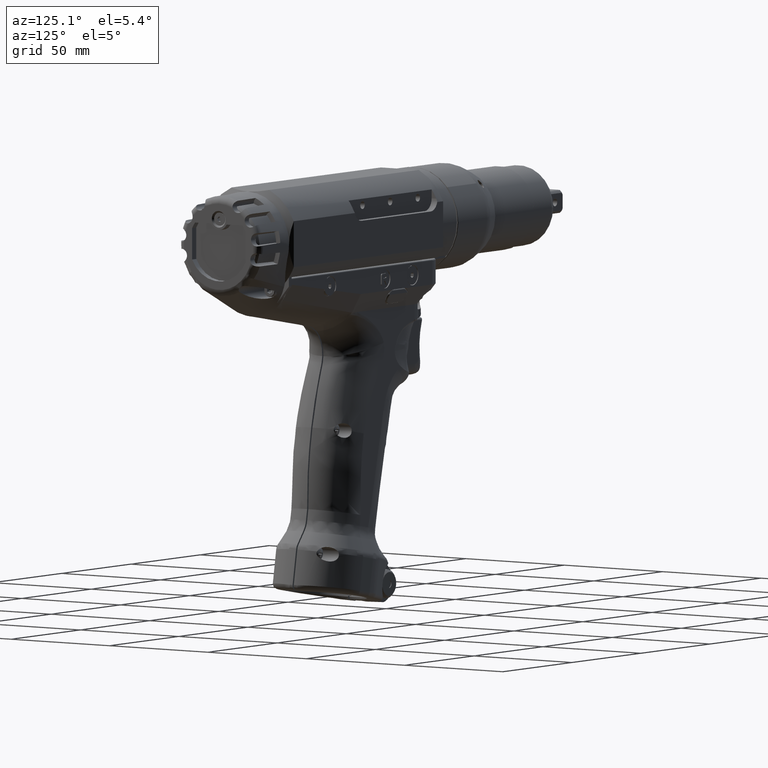
[diagram: clean part render]
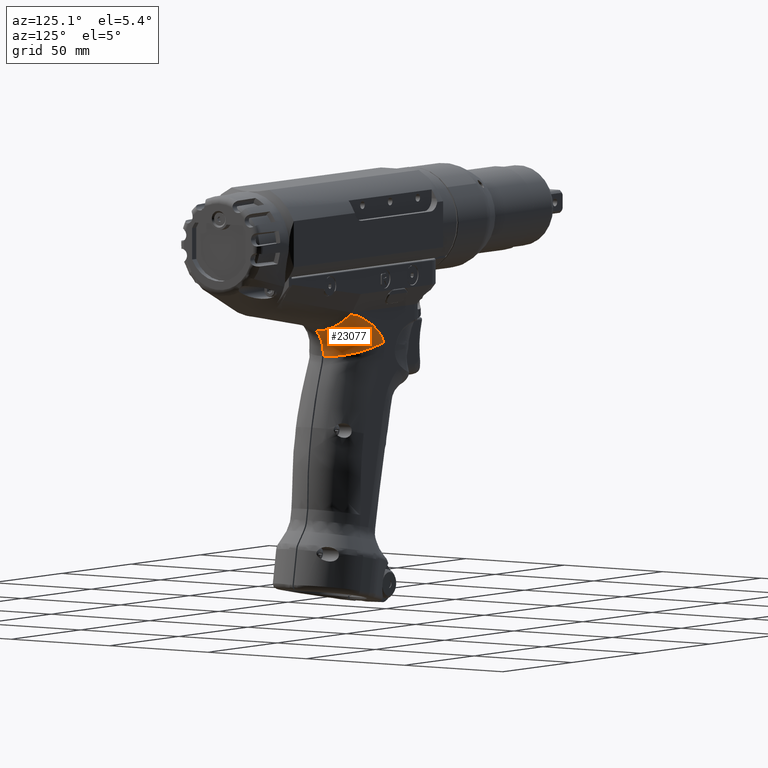
[diagram: same view with one face highlighted and labeled with its STEP entity id]
A machine part, auxiliary view. The second image highlights one B-rep face of the part: STEP entity #23077.
In plain terms, the highlighted face is a freeform B-spline surface patch.
Its self-contained STEP definition (entity closure, byte-faithful):
#4846=FACE_OUTER_BOUND('',#6165,.T.);
#6165=EDGE_LOOP('',(#18404,#18405,#18406,#18407));
#8032=B_SPLINE_CURVE_WITH_KNOTS('',3,(#47903,#47904,#47905,#47906,#47907,
#47908,#47909,#47910,#47911,#47912),.UNSPECIFIED.,.F.,.F.,(4,2,2,2,4),(-0.706436692791301,
-0.540412069470873,-0.374208225789473,-0.209948044190171,0.),
 .UNSPECIFIED.);
#8103=B_SPLINE_CURVE_WITH_KNOTS('',3,(#52436,#52437,#52438,#52439,#52440,
#52441,#52442,#52443,#52444,#52445,#52446,#52447,#52448,#52449,#52450,#52451,
#52452,#52453,#52454,#52455,#52456,#52457,#52458,#52459,#52460,#52461),
 .UNSPECIFIED.,.F.,.F.,(4,2,2,2,2,2,2,2,2,2,2,2,4),(1.34517341830377,3.0744719434439,
4.61170791516585,6.1489438868878,9.2234158303317,12.2978877737756,15.3723597172195,
16.9095956889415,18.4468316606634,19.9840676323854,21.5213036041073,23.0585395758293,
24.1925660659876),.UNSPECIFIED.);
#8115=B_SPLINE_CURVE_WITH_KNOTS('',3,(#53093,#53094,#53095,#53096,#53097,
#53098,#53099,#53100,#53101,#53102,#53103,#53104,#53105,#53106,#53107,#53108,
#53109,#53110,#53111,#53112,#53113,#53114),.UNSPECIFIED.,.F.,.F.,(4,3,3,
3,3,3,3,4),(0.0136464221409409,1.00000000026113,2.00000000041734,3.00000000057355,
4.00000000072976,5.00000000088597,6.00000000104218,6.9317977989823),
 .UNSPECIFIED.);
#8116=B_SPLINE_CURVE_WITH_KNOTS('',3,(#53375,#53376,#53377,#53378,#53379,
#53380,#53381,#53382,#53383,#53384,#53385,#53386,#53387,#53388,#53389,#53390,
#53391,#53392,#53393,#53394,#53395,#53396,#53397,#53398,#53399,#53400,#53401,
#53402,#53403,#53404,#53405,#53406,#53407,#53408,#53409,#53410,#53411,#53412,
#53413,#53414,#53415,#53416,#53417,#53418,#53419,#53420,#53421,#53422,#53423,
#53424,#53425,#53426,#53427,#53428,#53429,#53430,#53431,#53432,#53433,#53434,
#53435,#53436,#53437,#53438,#53439,#53440,#53441,#53442,#53443,#53444,#53445,
#53446,#53447,#53448,#53449,#53450,#53451,#53452,#53453,#53454,#53455,#53456,
#53457,#53458,#53459,#53460,#53461,#53462,#53463,#53464,#53465),
 .UNSPECIFIED.,.F.,.F.,(4,3,3,3,3,3,3,3,3,3,3,3,3,3,3,3,3,3,3,3,3,3,3,3,
3,3,3,3,3,3,4),(0.00445075458365548,0.72268126849615,1.46687370271726,2.22049502442213,
2.9878117044714,3.56746661180128,4.02126984733933,5.18763668429017,6.3805263647102,
7.12668029691477,8.05712127540025,9.60543250227456,10.6895826799625,12.1090980424027,
14.2494222677796,15.6158382951359,16.1759461798393,17.4744580553235,17.8098090379478,
18.7946534302228,19.8071783148312,20.2475859429209,21.1501327652931,21.3706433405057,
22.3939905892686,23.5253558104064,24.3621617742334,24.9355356215985,26.1643871501913,
27.5667143683033,28.4996910110152),.UNSPECIFIED.);
#10001=VERTEX_POINT('',#47891);
#10002=VERTEX_POINT('',#47902);
#10098=VERTEX_POINT('',#52435);
#10106=VERTEX_POINT('',#53076);
#12910=EDGE_CURVE('',#10001,#10002,#8032,.T.);
#13066=EDGE_CURVE('',#10098,#10002,#8103,.T.);
#13080=EDGE_CURVE('',#10106,#10001,#8115,.T.);
#13081=EDGE_CURVE('',#10106,#10098,#8116,.T.);
#18404=ORIENTED_EDGE('',*,*,#13081,.T.);
#18405=ORIENTED_EDGE('',*,*,#13066,.T.);
#18406=ORIENTED_EDGE('',*,*,#12910,.F.);
#18407=ORIENTED_EDGE('',*,*,#13080,.F.);
#20941=B_SPLINE_SURFACE_WITH_KNOTS('',3,3,((#53115,#53116,#53117,#53118,
#53119,#53120,#53121,#53122,#53123,#53124,#53125,#53126,#53127,#53128,#53129,
#53130,#53131,#53132,#53133,#53134,#53135,#53136,#53137,#53138,#53139,#53140),
(#53141,#53142,#53143,#53144,#53145,#53146,#53147,#53148,#53149,#53150,
#53151,#53152,#53153,#53154,#53155,#53156,#53157,#53158,#53159,#53160,#53161,
#53162,#53163,#53164,#53165,#53166),(#53167,#53168,#53169,#53170,#53171,
#53172,#53173,#53174,#53175,#53176,#53177,#53178,#53179,#53180,#53181,#53182,
#53183,#53184,#53185,#53186,#53187,#53188,#53189,#53190,#53191,#53192),
(#53193,#53194,#53195,#53196,#53197,#53198,#53199,#53200,#53201,#53202,
#53203,#53204,#53205,#53206,#53207,#53208,#53209,#53210,#53211,#53212,#53213,
#53214,#53215,#53216,#53217,#53218),(#53219,#53220,#53221,#53222,#53223,
#53224,#53225,#53226,#53227,#53228,#53229,#53230,#53231,#53232,#53233,#53234,
#53235,#53236,#53237,#53238,#53239,#53240,#53241,#53242,#53243,#53244),
(#53245,#53246,#53247,#53248,#53249,#53250,#53251,#53252,#53253,#53254,
#53255,#53256,#53257,#53258,#53259,#53260,#53261,#53262,#53263,#53264,#53265,
#53266,#53267,#53268,#53269,#53270),(#53271,#53272,#53273,#53274,#53275,
#53276,#53277,#53278,#53279,#53280,#53281,#53282,#53283,#53284,#53285,#53286,
#53287,#53288,#53289,#53290,#53291,#53292,#53293,#53294,#53295,#53296),
(#53297,#53298,#53299,#53300,#53301,#53302,#53303,#53304,#53305,#53306,
#53307,#53308,#53309,#53310,#53311,#53312,#53313,#53314,#53315,#53316,#53317,
#53318,#53319,#53320,#53321,#53322),(#53323,#53324,#53325,#53326,#53327,
#53328,#53329,#53330,#53331,#53332,#53333,#53334,#53335,#53336,#53337,#53338,
#53339,#53340,#53341,#53342,#53343,#53344,#53345,#53346,#53347,#53348),
(#53349,#53350,#53351,#53352,#53353,#53354,#53355,#53356,#53357,#53358,
#53359,#53360,#53361,#53362,#53363,#53364,#53365,#53366,#53367,#53368,#53369,
#53370,#53371,#53372,#53373,#53374)),.UNSPECIFIED.,.F.,.F.,.F.,(4,1,1,1,
1,1,1,4),(4,2,2,2,2,2,2,2,2,2,2,2,4),(-3.07557470419858E-5,1.,2.,3.,4.,
5.,6.,7.),(0.0480205993587217,3.0744719434439,4.61170791516585,6.1489438868878,
9.2234158303317,12.2978877737756,15.3723597172195,16.9095956889415,18.4468316606634,
19.9840676323854,21.5213036041073,23.0585395758293,24.3562148214928),
 .UNSPECIFIED.);
#23077=ADVANCED_FACE('',(#4846),#20941,.T.);
#47891=CARTESIAN_POINT('',(145.689352641795,0.300000091038293,-51.9993872166801));
#47902=CARTESIAN_POINT('',(150.70561121425,0.299999986791241,-41.1517619440249));
#47903=CARTESIAN_POINT('Ctrl Pts',(145.689347845303,0.299999999998235,-51.9993862263141));
#47904=CARTESIAN_POINT('Ctrl Pts',(145.643853929155,0.299999999998235,-50.9689868878503));
#47905=CARTESIAN_POINT('Ctrl Pts',(145.719497296639,0.299999999942371,-49.9338881016772));
#47906=CARTESIAN_POINT('Ctrl Pts',(146.118548321692,0.29999999994237,-47.897440782609));
#47907=CARTESIAN_POINT('Ctrl Pts',(146.437162251687,0.299999999998232,-46.912230506933));
#47908=CARTESIAN_POINT('Ctrl Pts',(147.308566305078,0.299999999998231,-45.0274632368902));
#47909=CARTESIAN_POINT('Ctrl Pts',(147.850179061906,0.300000000065115,-44.1451974306687));
#47910=CARTESIAN_POINT('Ctrl Pts',(149.332058256935,0.300000000065114,-42.2850201628169));
#47911=CARTESIAN_POINT('Ctrl Pts',(150.152294055988,0.29999999999823,-41.5802453348461));
#47912=CARTESIAN_POINT('Ctrl Pts',(150.705611981354,0.29999999999823,-41.1517633130345));
#52435=CARTESIAN_POINT('',(146.32613658195,14.4149653299118,-33.7505730793564));
#52436=CARTESIAN_POINT('Ctrl Pts',(146.32613658195,14.4149653299118,-33.7505730793563));
#52437=CARTESIAN_POINT('Ctrl Pts',(146.465903341443,14.164320600603,-34.072264441895));
#52438=CARTESIAN_POINT('Ctrl Pts',(146.605475410375,13.911859432446,-34.3925914315026));
#52439=CARTESIAN_POINT('Ctrl Pts',(146.86722963308,13.4178072371134,-34.9846247474012));
#52440=CARTESIAN_POINT('Ctrl Pts',(146.989463270776,13.1770957475516,-35.2568607714395));
#52441=CARTESIAN_POINT('Ctrl Pts',(147.231275672819,12.6779221344053,-35.7856974954742));
#52442=CARTESIAN_POINT('Ctrl Pts',(147.350921941257,12.4196720901509,-36.0425945184102));
#52443=CARTESIAN_POINT('Ctrl Pts',(147.70524589125,11.6200271729274,-36.7886292203272));
#52444=CARTESIAN_POINT('Ctrl Pts',(147.935388234039,11.0538387224606,-37.2533967585892));
#52445=CARTESIAN_POINT('Ctrl Pts',(148.380448928929,9.86496666768318,-38.1124369897286));
#52446=CARTESIAN_POINT('Ctrl Pts',(148.595235440844,9.24171284672317,-38.5060653725463));
#52447=CARTESIAN_POINT('Ctrl Pts',(149.006189429593,7.94678854537633,-39.2158536842459));
#52448=CARTESIAN_POINT('Ctrl Pts',(149.202445758899,7.27536658492244,-39.5323954021117));
#52449=CARTESIAN_POINT('Ctrl Pts',(149.480708995055,6.23927982510829,-39.9456065668083));
#52450=CARTESIAN_POINT('Ctrl Pts',(149.570751035203,5.88911262033351,-40.0730392206096));
#52451=CARTESIAN_POINT('Ctrl Pts',(149.745200312149,5.18046999786993,-40.3069980398824));
#52452=CARTESIAN_POINT('Ctrl Pts',(149.82938927432,4.82185207983272,-40.4132377180224));
#52453=CARTESIAN_POINT('Ctrl Pts',(149.992779559349,4.09825172771963,-40.605786429009));
#52454=CARTESIAN_POINT('Ctrl Pts',(150.072168018654,3.73335618623017,-40.6923476337625));
#52455=CARTESIAN_POINT('Ctrl Pts',(150.228011262213,2.99941844855846,-40.8483841822349));
#52456=CARTESIAN_POINT('Ctrl Pts',(150.304951306884,2.63041298851804,-40.9184869642242));
#52457=CARTESIAN_POINT('Ctrl Pts',(150.45635652275,1.88954007002732,-41.0422821012445));
#52458=CARTESIAN_POINT('Ctrl Pts',(150.529061645167,1.51633763270146,-41.0936121774255));
#52459=CARTESIAN_POINT('Ctrl Pts',(150.636395132033,0.86129423839058,-41.1463636526654));
#52460=CARTESIAN_POINT('Ctrl Pts',(150.67585966368,0.58103397961778,-41.1571024399937));
#52461=CARTESIAN_POINT('Ctrl Pts',(150.705611402849,0.299999999100247,-41.1517623469896));
#53076=CARTESIAN_POINT('',(123.285600841416,15.1538953846156,-47.373579548946));
#53093=CARTESIAN_POINT('Ctrl Pts',(123.285600872711,15.1538962533228,-47.3735795545362));
#53094=CARTESIAN_POINT('Ctrl Pts',(124.704372362055,15.1000632294402,-47.6665199558509));
#53095=CARTESIAN_POINT('Ctrl Pts',(126.130739462708,15.0382327887221,-47.9610286643993));
#53096=CARTESIAN_POINT('Ctrl Pts',(127.537679252376,14.9135469530622,-48.25152613553));
#53097=CARTESIAN_POINT('Ctrl Pts',(128.964084368247,14.7871360610198,-48.5460427040506));
#53098=CARTESIAN_POINT('Ctrl Pts',(130.370520892114,14.5961185058172,-48.8364362746179));
#53099=CARTESIAN_POINT('Ctrl Pts',(131.775289548369,14.301415771206,-49.1264854660263));
#53100=CARTESIAN_POINT('Ctrl Pts',(133.180058204624,14.0067130365948,-49.4165346574346));
#53101=CARTESIAN_POINT('Ctrl Pts',(134.583158993267,13.6083251225749,-49.7062394696839));
#53102=CARTESIAN_POINT('Ctrl Pts',(135.926353843547,13.0850775513861,-49.9835752015331));
#53103=CARTESIAN_POINT('Ctrl Pts',(137.269548693827,12.5618299801973,-50.2609109333822));
#53104=CARTESIAN_POINT('Ctrl Pts',(138.552837605744,11.9137227518396,-50.5258775848312));
#53105=CARTESIAN_POINT('Ctrl Pts',(139.743518026112,11.1014913284752,-50.7717228995084));
#53106=CARTESIAN_POINT('Ctrl Pts',(140.93419844648,10.2892599051108,-51.0175682141856));
#53107=CARTESIAN_POINT('Ctrl Pts',(142.0322703753,9.3129042867398,-51.2442921920909));
#53108=CARTESIAN_POINT('Ctrl Pts',(142.937685900607,8.17401012462695,-51.4312374938282));
#53109=CARTESIAN_POINT('Ctrl Pts',(143.843101425914,7.03511596251411,-51.6181827955656));
#53110=CARTESIAN_POINT('Ctrl Pts',(144.555860547707,5.73368325665945,-51.7653494211349));
#53111=CARTESIAN_POINT('Ctrl Pts',(145.018165487634,4.34118997188031,-51.8608037594813));
#53112=CARTESIAN_POINT('Ctrl Pts',(145.448940212567,3.0436677956794,-51.9497479017425));
#53113=CARTESIAN_POINT('Ctrl Pts',(145.662258811402,1.6670825326271,-51.9937929987276));
#53114=CARTESIAN_POINT('Ctrl Pts',(145.689352641795,0.300000091038293,-51.9993872166801));
#53115=CARTESIAN_POINT('Ctrl Pts',(123.285528104438,15.153897416313,-47.3736877165499));
#53116=CARTESIAN_POINT('Ctrl Pts',(124.521745768321,15.1069616749321,-47.6289308758978));
#53117=CARTESIAN_POINT('Ctrl Pts',(125.758042465758,15.0543246478494,-47.8841898905707));
#53118=CARTESIAN_POINT('Ctrl Pts',(127.61828967302,14.910343210905,-48.2682763200507));
#53119=CARTESIAN_POINT('Ctrl Pts',(128.243975898026,14.8503073219236,-48.397462145104));
#53120=CARTESIAN_POINT('Ctrl Pts',(129.492112154611,14.6999319967226,-48.6551656751208));
#53121=CARTESIAN_POINT('Ctrl Pts',(130.114430806695,14.6096745295328,-48.7836562545479));
#53122=CARTESIAN_POINT('Ctrl Pts',(131.972358903082,14.2848588612058,-49.1672641712523));
#53123=CARTESIAN_POINT('Ctrl Pts',(133.199776559671,13.9965860462951,-49.4206903331045));
#53124=CARTESIAN_POINT('Ctrl Pts',(135.602068276347,13.2425542392764,-49.9166946193625));
#53125=CARTESIAN_POINT('Ctrl Pts',(136.778156037279,12.7768758130149,-50.1595233407657));
#53126=CARTESIAN_POINT('Ctrl Pts',(139.021148117669,11.6187236670699,-50.6226380912642));
#53127=CARTESIAN_POINT('Ctrl Pts',(140.087202411398,10.9243167754341,-50.842748596097));
#53128=CARTESIAN_POINT('Ctrl Pts',(141.538581087105,9.69523901803214,-51.1424181463764));
#53129=CARTESIAN_POINT('Ctrl Pts',(141.996998713202,9.25439237099614,-51.2370687587813));
#53130=CARTESIAN_POINT('Ctrl Pts',(142.848102037944,8.31018776412722,-51.4127982373716));
#53131=CARTESIAN_POINT('Ctrl Pts',(143.239528525382,7.80596614975751,-51.493617107777));
#53132=CARTESIAN_POINT('Ctrl Pts',(143.941977481889,6.74183483250401,-51.6386537121623));
#53133=CARTESIAN_POINT('Ctrl Pts',(144.25353449998,6.18242150935619,-51.7029818155775));
#53134=CARTESIAN_POINT('Ctrl Pts',(144.78773250277,5.02083083799969,-51.8132793851163));
#53135=CARTESIAN_POINT('Ctrl Pts',(145.009936343777,4.4185695879017,-51.8591585889753));
#53136=CARTESIAN_POINT('Ctrl Pts',(145.357355734024,3.18528842677208,-51.9308916620516));
#53137=CARTESIAN_POINT('Ctrl Pts',(145.484440801131,2.55515684986377,-51.9571315317511));
#53138=CARTESIAN_POINT('Ctrl Pts',(145.638754329419,1.38245770890819,-51.9889935389163));
#53139=CARTESIAN_POINT('Ctrl Pts',(145.67862262565,0.841512777330828,-51.9972254620419));
#53140=CARTESIAN_POINT('Ctrl Pts',(145.689350987524,0.299962520609066,-51.9994407280963));
#53141=CARTESIAN_POINT('Ctrl Pts',(123.665123155559,15.1398537977718,-46.1169134417494));
#53142=CARTESIAN_POINT('Ctrl Pts',(124.875234955769,15.0848069036532,-46.4155147268239));
#53143=CARTESIAN_POINT('Ctrl Pts',(126.093062108867,15.0239070575658,-46.7207750134772));
#53144=CARTESIAN_POINT('Ctrl Pts',(127.93038957699,14.8667812542793,-47.1819712690515));
#53145=CARTESIAN_POINT('Ctrl Pts',(128.549139846454,14.8021563730832,-47.3373817841739));
#53146=CARTESIAN_POINT('Ctrl Pts',(129.78435550566,14.6421686516199,-47.6469766932976));
#53147=CARTESIAN_POINT('Ctrl Pts',(130.400655401876,14.5468723056015,-47.8011142841756));
#53148=CARTESIAN_POINT('Ctrl Pts',(132.240883938847,14.2061649713764,-48.2595239886884));
#53149=CARTESIAN_POINT('Ctrl Pts',(133.456989594838,13.9062340881357,-48.5597560686538));
#53150=CARTESIAN_POINT('Ctrl Pts',(135.833366366838,13.1275774075738,-49.1388492733703));
#53151=CARTESIAN_POINT('Ctrl Pts',(136.99473915272,12.6487974329647,-49.417943066318));
#53152=CARTESIAN_POINT('Ctrl Pts',(139.201935750763,11.4659361161842,-49.9418460416161));
#53153=CARTESIAN_POINT('Ctrl Pts',(140.247209839648,10.7601234356148,-50.1866887869415));
#53154=CARTESIAN_POINT('Ctrl Pts',(141.662620521375,9.52168426638789,-50.5148583643425));
#53155=CARTESIAN_POINT('Ctrl Pts',(142.108279511807,9.07901957320889,-50.6175953114343));
#53156=CARTESIAN_POINT('Ctrl Pts',(142.932960245964,8.13500360758994,-50.8067511233675));
#53157=CARTESIAN_POINT('Ctrl Pts',(143.310528939152,7.63295865391356,-50.8928507947013));
#53158=CARTESIAN_POINT('Ctrl Pts',(143.987547462494,6.57766002456698,-51.0462491337393));
#53159=CARTESIAN_POINT('Ctrl Pts',(144.287081896472,6.02486675688881,-51.1135994029329));
#53160=CARTESIAN_POINT('Ctrl Pts',(144.799986681481,4.88121621765261,-51.2279951295343));
#53161=CARTESIAN_POINT('Ctrl Pts',(145.01280739965,4.29007684773267,-51.2749905534293));
#53162=CARTESIAN_POINT('Ctrl Pts',(145.34575548229,3.08452218474895,-51.3473199259228));
#53163=CARTESIAN_POINT('Ctrl Pts',(145.467558262594,2.4710372403284,-51.3729701803751));
#53164=CARTESIAN_POINT('Ctrl Pts',(145.615299548094,1.33362713825199,-51.4027480102824));
#53165=CARTESIAN_POINT('Ctrl Pts',(145.653370780726,0.810648847473002,-51.4096301805022));
#53166=CARTESIAN_POINT('Ctrl Pts',(145.663561183555,0.288844852613135,-51.4104349830623));
#53167=CARTESIAN_POINT('Ctrl Pts',(125.003673116224,15.1112956385162,-43.7899983899567));
#53168=CARTESIAN_POINT('Ctrl Pts',(126.139849194137,14.9893303700603,-44.1624358974657));
#53169=CARTESIAN_POINT('Ctrl Pts',(127.291428703065,14.8797913596403,-44.5536856128037));
#53170=CARTESIAN_POINT('Ctrl Pts',(129.033232268632,14.6725554511328,-45.1455501666997));
#53171=CARTESIAN_POINT('Ctrl Pts',(129.620611633751,14.5938298142515,-45.3451493822838));
#53172=CARTESIAN_POINT('Ctrl Pts',(130.792613109269,14.3981616111144,-45.7423218593926));
#53173=CARTESIAN_POINT('Ctrl Pts',(131.377195445044,14.2838203435039,-45.9397471513309));
#53174=CARTESIAN_POINT('Ctrl Pts',(133.120474395874,13.8825239006408,-46.5247297237743));
#53175=CARTESIAN_POINT('Ctrl Pts',(134.268841584789,13.5368543325288,-46.9049580126834));
#53176=CARTESIAN_POINT('Ctrl Pts',(136.502727388323,12.6806100998754,-47.6280341921172));
#53177=CARTESIAN_POINT('Ctrl Pts',(137.589312782492,12.1705128192245,-47.9709431807726));
#53178=CARTESIAN_POINT('Ctrl Pts',(139.647314994424,10.9549216819204,-48.6016946840254));
#53179=CARTESIAN_POINT('Ctrl Pts',(140.618274936892,10.2455484981349,-48.8902622889094));
#53180=CARTESIAN_POINT('Ctrl Pts',(141.932677850466,9.02923061552294,-49.2673552076555));
#53181=CARTESIAN_POINT('Ctrl Pts',(142.346494161116,8.5984070437131,-49.3836544349803));
#53182=CARTESIAN_POINT('Ctrl Pts',(143.113047526559,7.68690708061125,-49.594731554885));
#53183=CARTESIAN_POINT('Ctrl Pts',(143.46458244939,7.20601828993801,-49.6890391771763));
#53184=CARTESIAN_POINT('Ctrl Pts',(144.09564106557,6.19610131038797,-49.8559319565142));
#53185=CARTESIAN_POINT('Ctrl Pts',(144.375506480238,5.66877932078258,-49.9281849828175));
#53186=CARTESIAN_POINT('Ctrl Pts',(144.856933843306,4.58121258050282,-50.0494340030673));
#53187=CARTESIAN_POINT('Ctrl Pts',(145.058253850561,4.02060873539676,-50.0984059977802));
#53188=CARTESIAN_POINT('Ctrl Pts',(145.3765677423,2.8817107561256,-50.17233058139));
#53189=CARTESIAN_POINT('Ctrl Pts',(145.494677717706,2.30448869670562,-50.197443609149));
#53190=CARTESIAN_POINT('Ctrl Pts',(145.640227296537,1.2394169871689,-50.2241907061264));
#53191=CARTESIAN_POINT('Ctrl Pts',(145.678999527179,0.751705775228041,-50.2288707166629));
#53192=CARTESIAN_POINT('Ctrl Pts',(145.691046677375,0.26767003120386,-50.2269904189293));
#53193=CARTESIAN_POINT('Ctrl Pts',(127.896898629706,15.0775834453214,-40.9902835691754));
#53194=CARTESIAN_POINT('Ctrl Pts',(128.896895276746,14.8876359534918,-41.4382488859133));
#53195=CARTESIAN_POINT('Ctrl Pts',(129.914816448696,14.7127749794397,-41.9133422314465));
#53196=CARTESIAN_POINT('Ctrl Pts',(131.454634595651,14.41467522914,-42.6297385296352));
#53197=CARTESIAN_POINT('Ctrl Pts',(131.97385240535,14.3061244923609,-42.8707798655383));
#53198=CARTESIAN_POINT('Ctrl Pts',(133.00861985398,14.0486129841745,-43.3488467731913));
#53199=CARTESIAN_POINT('Ctrl Pts',(133.52416703315,13.9032615306566,-43.5856836940122));
#53200=CARTESIAN_POINT('Ctrl Pts',(135.05885849285,13.4106076804139,-44.2845718604952));
#53201=CARTESIAN_POINT('Ctrl Pts',(136.06589599633,13.006046021431,-44.7349883328204));
#53202=CARTESIAN_POINT('Ctrl Pts',(138.01561498085,12.0536012423126,-45.5828483450934));
#53203=CARTESIAN_POINT('Ctrl Pts',(138.959149733391,11.5063290411477,-45.9801684580403));
#53204=CARTESIAN_POINT('Ctrl Pts',(140.73870030863,10.2521692281326,-46.7021505020573));
#53205=CARTESIAN_POINT('Ctrl Pts',(141.57472241503,9.5405109460311,-47.0281716870023));
#53206=CARTESIAN_POINT('Ctrl Pts',(142.70381812559,8.35411549442291,-47.4481767290452));
#53207=CARTESIAN_POINT('Ctrl Pts',(143.05881366751,7.93878279170677,-47.5765842658793));
#53208=CARTESIAN_POINT('Ctrl Pts',(143.71619672543,7.0697256242567,-47.8077631366543));
#53209=CARTESIAN_POINT('Ctrl Pts',(144.017466327891,6.61624863594766,-47.9099186260723));
#53210=CARTESIAN_POINT('Ctrl Pts',(144.55989471838,5.66881890535646,-48.0902668775662));
#53211=CARTESIAN_POINT('Ctrl Pts',(144.80117589958,5.17723548706518,-48.1678294697022));
#53212=CARTESIAN_POINT('Ctrl Pts',(145.21895325049,4.16896306228392,-48.2974785870833));
#53213=CARTESIAN_POINT('Ctrl Pts',(145.39538160606,3.65174184741861,-48.3496238839813));
#53214=CARTESIAN_POINT('Ctrl Pts',(145.678897787641,2.60704792677816,-48.4279690801903));
#53215=CARTESIAN_POINT('Ctrl Pts',(145.78641290659,2.08064525045003,-48.4540283762032));
#53216=CARTESIAN_POINT('Ctrl Pts',(145.921971939502,1.11464647151098,-48.4793257464282));
#53217=CARTESIAN_POINT('Ctrl Pts',(145.959782074928,0.674402736459998,-48.4820678711575));
#53218=CARTESIAN_POINT('Ctrl Pts',(145.973669854776,0.239976196198567,-48.4768464154605));
#53219=CARTESIAN_POINT('Ctrl Pts',(131.1975167568,15.0496206283388,-38.6890990413348));
#53220=CARTESIAN_POINT('Ctrl Pts',(132.051182400279,14.7983164952557,-39.1896023339372));
#53221=CARTESIAN_POINT('Ctrl Pts',(132.92221300649,14.5602503391978,-39.7193640125323));
#53222=CARTESIAN_POINT('Ctrl Pts',(134.23828894069,14.1684832270568,-40.5134502492802));
#53223=CARTESIAN_POINT('Ctrl Pts',(134.68171945427,14.0284920657232,-40.7796459433233));
#53224=CARTESIAN_POINT('Ctrl Pts',(135.56406067149,13.7087180195851,-41.3056393350292));
#53225=CARTESIAN_POINT('Ctrl Pts',(136.00298704998,13.5327947037852,-41.5652585971643));
#53226=CARTESIAN_POINT('Ctrl Pts',(137.30699554706,12.952377336538,-42.3286709404262));
#53227=CARTESIAN_POINT('Ctrl Pts',(138.15900221585,12.4945579048998,-42.8171000505982));
#53228=CARTESIAN_POINT('Ctrl Pts',(139.8009332084,11.4577954453499,-43.7307724326462));
#53229=CARTESIAN_POINT('Ctrl Pts',(140.59147948517,10.879447437152,-44.1557254904342));
#53230=CARTESIAN_POINT('Ctrl Pts',(142.07693346354,9.59661149394461,-44.9230329187052));
#53231=CARTESIAN_POINT('Ctrl Pts',(142.772222564781,8.88717388299709,-45.2671170217342));
#53232=CARTESIAN_POINT('Ctrl Pts',(143.7101805201,7.73370608652837,-45.7075913988712));
#53233=CARTESIAN_POINT('Ctrl Pts',(144.00489563068,7.33426789644978,-45.8417240423682));
#53234=CARTESIAN_POINT('Ctrl Pts',(144.55107259099,6.50705730415936,-46.0824826780813));
#53235=CARTESIAN_POINT('Ctrl Pts',(144.801533345481,6.07982096192036,-46.1884127445943));
#53236=CARTESIAN_POINT('Ctrl Pts',(145.25472123043,5.19257355075436,-46.3756501612492));
#53237=CARTESIAN_POINT('Ctrl Pts',(145.45740109914,4.73519954221543,-46.4561765800092));
#53238=CARTESIAN_POINT('Ctrl Pts',(145.81185624839,3.80203114942679,-46.5913151303542));
#53239=CARTESIAN_POINT('Ctrl Pts',(145.96372047488,3.32562404488457,-46.6460815922313));
#53240=CARTESIAN_POINT('Ctrl Pts',(146.213284749411,2.36789117195205,-46.7294088043722));
#53241=CARTESIAN_POINT('Ctrl Pts',(146.31079263363,1.88747105622765,-46.7574711654673));
#53242=CARTESIAN_POINT('Ctrl Pts',(146.437606945834,1.00875849247263,-46.7834600564169));
#53243=CARTESIAN_POINT('Ctrl Pts',(146.475099982875,0.609445911801026,-46.7853132703718));
#53244=CARTESIAN_POINT('Ctrl Pts',(146.491377338517,0.216770569739992,-46.7773517596169));
#53245=CARTESIAN_POINT('Ctrl Pts',(134.675339041196,15.0263507324449,-36.7910448488731));
#53246=CARTESIAN_POINT('Ctrl Pts',(135.380217828613,14.7200328858324,-37.3270803877333));
#53247=CARTESIAN_POINT('Ctrl Pts',(136.101782061994,14.4246577022415,-37.8899317494819));
#53248=CARTESIAN_POINT('Ctrl Pts',(137.19104115161,13.9453522339424,-38.7271047660162));
#53249=CARTESIAN_POINT('Ctrl Pts',(137.55782132197,13.7757522858644,-39.0064695415322));
#53250=CARTESIAN_POINT('Ctrl Pts',(138.28660048075,13.3993586674314,-39.5561591466622));
#53251=CARTESIAN_POINT('Ctrl Pts',(138.64862716014,13.1961513907513,-39.8263602837793));
#53252=CARTESIAN_POINT('Ctrl Pts',(139.7221459677,12.5390003993718,-40.6180737177343));
#53253=CARTESIAN_POINT('Ctrl Pts',(140.420696150061,12.0369164169409,-41.1208787460863));
#53254=CARTESIAN_POINT('Ctrl Pts',(141.760642563631,10.9314598499431,-42.0567076342213));
#53255=CARTESIAN_POINT('Ctrl Pts',(142.40243171192,10.3285481197414,-42.4892996399432));
#53256=CARTESIAN_POINT('Ctrl Pts',(143.6038758888,9.02503899620142,-43.2672232928163));
#53257=CARTESIAN_POINT('Ctrl Pts',(144.16412672911,8.31994901551504,-43.6143698575152));
#53258=CARTESIAN_POINT('Ctrl Pts',(144.919752955221,7.1976834928783,-44.0577247699452));
#53259=CARTESIAN_POINT('Ctrl Pts',(145.15717914125,6.81276304440458,-44.1925384902783));
#53260=CARTESIAN_POINT('Ctrl Pts',(145.598085779961,6.02298202662359,-44.4345221722183));
#53261=CARTESIAN_POINT('Ctrl Pts',(145.80071901006,5.61876639715321,-44.5409881776373));
#53262=CARTESIAN_POINT('Ctrl Pts',(146.17006145276,4.78520450873065,-44.7297438730963));
#53263=CARTESIAN_POINT('Ctrl Pts',(146.3366384516,4.35839128067571,-44.8112642429273));
#53264=CARTESIAN_POINT('Ctrl Pts',(146.632234112151,3.4920781598967,-44.9494220232262));
#53265=CARTESIAN_POINT('Ctrl Pts',(146.76148037676,3.05198255191211,-45.0063216535562));
#53266=CARTESIAN_POINT('Ctrl Pts',(146.98039797774,2.17045354931139,-45.0951788649203));
#53267=CARTESIAN_POINT('Ctrl Pts',(147.06933527418,1.72959361550646,-45.1262258360543));
#53268=CARTESIAN_POINT('Ctrl Pts',(147.189638915567,0.923894664743732,-45.1549304127328));
#53269=CARTESIAN_POINT('Ctrl Pts',(147.227689262051,0.55800593254853,-45.1568971699697));
#53270=CARTESIAN_POINT('Ctrl Pts',(147.246954051498,0.198456820680896,-45.1468168426886));
#53271=CARTESIAN_POINT('Ctrl Pts',(138.339667842815,15.0065279748289,-35.1903367851663));
#53272=CARTESIAN_POINT('Ctrl Pts',(138.891787793367,14.6495906049484,-35.7488699927813));
#53273=CARTESIAN_POINT('Ctrl Pts',(139.457185409133,14.3023819612967,-36.3302505638165));
#53274=CARTESIAN_POINT('Ctrl Pts',(140.30891650146,13.7430630130007,-37.1887687588142));
#53275=CARTESIAN_POINT('Ctrl Pts',(140.59536242979,13.5464475310907,-37.4740581624572));
#53276=CARTESIAN_POINT('Ctrl Pts',(141.16363168665,13.1206041051483,-38.0332143823783));
#53277=CARTESIAN_POINT('Ctrl Pts',(141.44549544575,12.894265823191,-38.3070547417113));
#53278=CARTESIAN_POINT('Ctrl Pts',(142.27993556388,12.174159435552,-39.1070298302762));
#53279=CARTESIAN_POINT('Ctrl Pts',(142.82102806402,11.6388484088668,-39.6118691079982));
#53280=CARTESIAN_POINT('Ctrl Pts',(143.85582745125,10.4847162359904,-40.5483133953242));
#53281=CARTESIAN_POINT('Ctrl Pts',(144.349725275241,9.8661175034011,-40.9793796293472));
#53282=CARTESIAN_POINT('Ctrl Pts',(145.27327511777,8.55404074272188,-41.7534337971862));
#53283=CARTESIAN_POINT('Ctrl Pts',(145.70355138386,7.85707727751211,-42.0980480250823));
#53284=CARTESIAN_POINT('Ctrl Pts',(146.28624042742,6.76544841762135,-42.5392218190822));
#53285=CARTESIAN_POINT('Ctrl Pts',(146.4697976645,6.39382958799512,-42.6735876010383));
#53286=CARTESIAN_POINT('Ctrl Pts',(146.81249118865,5.63681992959435,-42.9156667299622));
#53287=CARTESIAN_POINT('Ctrl Pts',(146.97096098567,5.25200098371695,-43.0227400966413));
#53288=CARTESIAN_POINT('Ctrl Pts',(147.26318775064,4.46416366841131,-43.2135802736543));
#53289=CARTESIAN_POINT('Ctrl Pts',(147.396819994831,4.06322459371788,-43.2967502536332));
#53290=CARTESIAN_POINT('Ctrl Pts',(147.63909584271,3.25293127250478,-43.4399390901763));
#53291=CARTESIAN_POINT('Ctrl Pts',(147.74807963049,2.84309322287027,-43.5003348929842));
#53292=CARTESIAN_POINT('Ctrl Pts',(147.94005708422,2.02360798931001,-43.5981368128142));
#53293=CARTESIAN_POINT('Ctrl Pts',(148.02187174893,1.61405301178173,-43.6341844199793));
#53294=CARTESIAN_POINT('Ctrl Pts',(148.137689029383,0.863753318963603,-43.6689376139267));
#53295=CARTESIAN_POINT('Ctrl Pts',(148.176989351116,0.522269159683704,-43.6723916812576));
#53296=CARTESIAN_POINT('Ctrl Pts',(148.199647295971,0.185807444242306,-43.6610087393108));
#53297=CARTESIAN_POINT('Ctrl Pts',(142.06022323618,14.9886835102437,-33.7583079994001));
#53298=CARTESIAN_POINT('Ctrl Pts',(142.459248920197,14.5840327311329,-34.3325004928976));
#53299=CARTESIAN_POINT('Ctrl Pts',(142.868317757921,14.192514629767,-34.925268632203));
#53300=CARTESIAN_POINT('Ctrl Pts',(143.484126581611,13.566591112763,-35.7949707183883));
#53301=CARTESIAN_POINT('Ctrl Pts',(143.69114444899,13.3479117116279,-36.0829442086842));
#53302=CARTESIAN_POINT('Ctrl Pts',(144.10162152601,12.8837828388259,-36.6453644702743));
#53303=CARTESIAN_POINT('Ctrl Pts',(144.305146368001,12.640308515331,-36.9199196301523));
#53304=CARTESIAN_POINT('Ctrl Pts',(144.90749561569,11.875629993236,-37.7199345579492));
#53305=CARTESIAN_POINT('Ctrl Pts',(145.29785857476,11.3198665446135,-38.2219772520312));
#53306=CARTESIAN_POINT('Ctrl Pts',(146.04468580927,10.13830887968,-39.1507455862023));
#53307=CARTESIAN_POINT('Ctrl Pts',(146.4011769507,9.51241993167812,-39.5768625565473));
#53308=CARTESIAN_POINT('Ctrl Pts',(147.06988250155,8.20123109003089,-40.3418185365362));
#53309=CARTESIAN_POINT('Ctrl Pts',(147.38250636841,7.51394348716484,-40.6818062346952));
#53310=CARTESIAN_POINT('Ctrl Pts',(147.810521294661,6.44873482258123,-41.1194348461073));
#53311=CARTESIAN_POINT('Ctrl Pts',(147.94625865352,6.08792485853706,-41.2532061224433));
#53312=CARTESIAN_POINT('Ctrl Pts',(148.20240519819,5.35650365961032,-41.4957740257702));
#53313=CARTESIAN_POINT('Ctrl Pts',(148.32236359982,4.98620659205282,-41.6040715804232));
#53314=CARTESIAN_POINT('Ctrl Pts',(148.54751729619,4.2337814038675,-41.7982731307562));
#53315=CARTESIAN_POINT('Ctrl Pts',(148.65271611142,3.85295095793675,-41.8839258763263));
#53316=CARTESIAN_POINT('Ctrl Pts',(148.84944398687,3.0860387310353,-42.0342975138772));
#53317=CARTESIAN_POINT('Ctrl Pts',(148.941403236601,2.69968388701743,-42.0995173657153));
#53318=CARTESIAN_POINT('Ctrl Pts',(149.11159024477,1.92709589899849,-42.2095585084142));
#53319=CARTESIAN_POINT('Ctrl Pts',(149.188283053461,1.54031223593495,-42.2525291330243));
#53320=CARTESIAN_POINT('Ctrl Pts',(149.302375595874,0.827711991147097,-42.2964906400966));
#53321=CARTESIAN_POINT('Ctrl Pts',(149.343845507224,0.501736932034193,-42.3027236238041));
#53322=CARTESIAN_POINT('Ctrl Pts',(149.370426540072,0.178632451533716,-42.2907987665912));
#53323=CARTESIAN_POINT('Ctrl Pts',(144.699202456633,14.9823141743109,-33.266524388083));
#53324=CARTESIAN_POINT('Ctrl Pts',(144.995251738249,14.5561440006967,-33.8341183788796));
#53325=CARTESIAN_POINT('Ctrl Pts',(145.295437336927,14.138313922733,-34.4114233222921));
#53326=CARTESIAN_POINT('Ctrl Pts',(145.743351465781,13.4633591275212,-35.2489886445332));
#53327=CARTESIAN_POINT('Ctrl Pts',(145.89320371528,13.2272733030392,-35.5245611232433));
#53328=CARTESIAN_POINT('Ctrl Pts',(146.189763743291,12.7349057285649,-36.0608916187602));
#53329=CARTESIAN_POINT('Ctrl Pts',(146.336469777391,12.4791137614679,-36.3216360027793));
#53330=CARTESIAN_POINT('Ctrl Pts',(146.770289023321,11.6840830695099,-37.0792765201503));
#53331=CARTESIAN_POINT('Ctrl Pts',(147.05109173107,11.1170648602859,-37.5518530701083));
#53332=CARTESIAN_POINT('Ctrl Pts',(147.589467290371,9.92282134649342,-38.4237392476243));
#53333=CARTESIAN_POINT('Ctrl Pts',(147.84684217427,9.29526902668047,-38.8223080548963));
#53334=CARTESIAN_POINT('Ctrl Pts',(148.33361479972,7.99083024618751,-39.5396060768173));
#53335=CARTESIAN_POINT('Ctrl Pts',(148.563295244551,7.31351241101022,-39.8591003734873));
#53336=CARTESIAN_POINT('Ctrl Pts',(148.88470731543,6.26955005311173,-40.2756209183512));
#53337=CARTESIAN_POINT('Ctrl Pts',(148.98798185298,5.91690478572506,-40.4040029246112));
#53338=CARTESIAN_POINT('Ctrl Pts',(149.186665287001,5.20372075635007,-40.6398007378462));
#53339=CARTESIAN_POINT('Ctrl Pts',(149.281780401861,4.84323560655255,-40.7468373059123));
#53340=CARTESIAN_POINT('Ctrl Pts',(149.46539388019,4.11445142467181,-40.9420493213822));
#53341=CARTESIAN_POINT('Ctrl Pts',(149.55402800253,3.74673130182944,-41.0303153833373));
#53342=CARTESIAN_POINT('Ctrl Pts',(149.726947221651,3.00730522206062,-41.1908347032092));
#53343=CARTESIAN_POINT('Ctrl Pts',(149.8118831625,2.63542936055592,-41.2639145680733));
#53344=CARTESIAN_POINT('Ctrl Pts',(149.977602781201,1.89075687176583,-41.3943830059472));
#53345=CARTESIAN_POINT('Ctrl Pts',(150.05622751204,1.51654838456777,-41.4489694371823));
#53346=CARTESIAN_POINT('Ctrl Pts',(150.1766430085,0.820251351904962,-41.5092556305471));
#53347=CARTESIAN_POINT('Ctrl Pts',(150.221969874793,0.498887589446531,-41.5208493438092));
#53348=CARTESIAN_POINT('Ctrl Pts',(150.251554177805,0.177787419471366,-41.5094280183568));
#53349=CARTESIAN_POINT('Ctrl Pts',(146.011629111491,14.9789972043611,-33.0267031944295));
#53350=CARTESIAN_POINT('Ctrl Pts',(146.255953822651,14.5379504347986,-33.5878222839614));
#53351=CARTESIAN_POINT('Ctrl Pts',(146.50153186638,14.1080493709991,-34.1574928609586));
#53352=CARTESIAN_POINT('Ctrl Pts',(146.86722968681,13.4178072413015,-34.9846248379273));
#53353=CARTESIAN_POINT('Ctrl Pts',(146.989463337001,13.1770957527135,-35.2568608830163));
#53354=CARTESIAN_POINT('Ctrl Pts',(147.231275764291,12.6779221415351,-35.7856976495883));
#53355=CARTESIAN_POINT('Ctrl Pts',(147.35092204548,12.4196720982746,-36.0425946940092));
#53356=CARTESIAN_POINT('Ctrl Pts',(147.70524603404,11.6200271840572,-36.7886294609072));
#53357=CARTESIAN_POINT('Ctrl Pts',(147.93538840296,11.0538387356272,-37.2533970431952));
#53358=CARTESIAN_POINT('Ctrl Pts',(148.38044915055,9.86496668495741,-38.1124373631263));
#53359=CARTESIAN_POINT('Ctrl Pts',(148.59523568904,9.2417128660688,-38.5060657907192));
#53360=CARTESIAN_POINT('Ctrl Pts',(149.006189731,7.94678856886938,-39.2158541920703));
#53361=CARTESIAN_POINT('Ctrl Pts',(149.20244608694,7.27536661049149,-39.5323959548112));
#53362=CARTESIAN_POINT('Ctrl Pts',(149.4807093628,6.23927985377207,-39.9456071864033));
#53363=CARTESIAN_POINT('Ctrl Pts',(149.570751416141,5.88911265002551,-40.0730398624312));
#53364=CARTESIAN_POINT('Ctrl Pts',(149.74520071934,5.18047002960825,-40.3069987259373));
#53365=CARTESIAN_POINT('Ctrl Pts',(149.82938969457,4.82185211258893,-40.4132384260802));
#53366=CARTESIAN_POINT('Ctrl Pts',(149.99278000555,4.09825176249861,-40.6057871807912));
#53367=CARTESIAN_POINT('Ctrl Pts',(150.07216847775,3.73335622201427,-40.6923484072713));
#53368=CARTESIAN_POINT('Ctrl Pts',(150.22801174693,2.99941848633956,-40.8483849989112));
#53369=CARTESIAN_POINT('Ctrl Pts',(150.30495180434,2.63041302729205,-40.9184878023633));
#53370=CARTESIAN_POINT('Ctrl Pts',(150.45635704549,1.88954011077211,-41.0422829819843));
#53371=CARTESIAN_POINT('Ctrl Pts',(150.52906218044,1.51633767442307,-41.0936130792803));
#53372=CARTESIAN_POINT('Ctrl Pts',(150.64297122923,0.821164553767579,-41.1495962903749));
#53373=CARTESIAN_POINT('Ctrl Pts',(150.687123239779,0.500101286188405,-41.1599600494881));
#53374=CARTESIAN_POINT('Ctrl Pts',(150.717874544954,0.178289817238915,-41.1484336638632));
#53375=CARTESIAN_POINT('Ctrl Pts',(123.28560081682,15.1538946896335,-47.3735795429965));
#53376=CARTESIAN_POINT('Ctrl Pts',(123.356296414826,15.151276985635,-47.1478321816564));
#53377=CARTESIAN_POINT('Ctrl Pts',(123.437285235041,15.1486086262642,-46.9258399603975));
#53378=CARTESIAN_POINT('Ctrl Pts',(123.527482881902,15.1458716615822,-46.7076099443957));
#53379=CARTESIAN_POINT('Ctrl Pts',(123.620940908368,15.143035763678,-46.4814915552676));
#53380=CARTESIAN_POINT('Ctrl Pts',(123.72428552321,15.1401252747466,-46.2594120880884));
#53381=CARTESIAN_POINT('Ctrl Pts',(123.836365793321,15.1371144886329,-46.0413714189199));
#53382=CARTESIAN_POINT('Ctrl Pts',(123.949866115838,15.1340655559831,-45.8205681834555));
#53383=CARTESIAN_POINT('Ctrl Pts',(124.072325126585,15.1309129431395,-45.6039065136312));
#53384=CARTESIAN_POINT('Ctrl Pts',(124.202601096187,15.1276378119094,-45.3913814186409));
#53385=CARTESIAN_POINT('Ctrl Pts',(124.335244536076,15.1243031625969,-45.1749941620461));
#53386=CARTESIAN_POINT('Ctrl Pts',(124.475991931321,15.1208408335136,-44.9628949601184));
#53387=CARTESIAN_POINT('Ctrl Pts',(124.623688984519,15.1172505133107,-44.7550770099821));
#53388=CARTESIAN_POINT('Ctrl Pts',(124.73526393644,15.1145382736597,-44.5980848608997));
#53389=CARTESIAN_POINT('Ctrl Pts',(124.850805997095,15.111753389358,-44.4435358660989));
#53390=CARTESIAN_POINT('Ctrl Pts',(124.969834404002,15.1089058630783,-44.2914277477556));
#53391=CARTESIAN_POINT('Ctrl Pts',(125.063019979579,15.1066765769588,-44.1723445563896));
#53392=CARTESIAN_POINT('Ctrl Pts',(125.158275731002,15.1044125091266,-44.0548031045405));
#53393=CARTESIAN_POINT('Ctrl Pts',(125.255385313665,15.102120493543,-43.9388255518924));
#53394=CARTESIAN_POINT('Ctrl Pts',(125.504976739858,15.0962295461958,-43.6407395960284));
#53395=CARTESIAN_POINT('Ctrl Pts',(125.766811160742,15.0901555589277,-43.3529838389149));
#53396=CARTESIAN_POINT('Ctrl Pts',(126.038764000265,15.0839052119243,-43.0746339050376));
#53397=CARTESIAN_POINT('Ctrl Pts',(126.316900968456,15.0775127338434,-42.7899543744227));
#53398=CARTESIAN_POINT('Ctrl Pts',(126.60562186771,15.0709360743565,-42.5151132039665));
#53399=CARTESIAN_POINT('Ctrl Pts',(126.902707891714,15.0641791165163,-42.2491314711305));
#53400=CARTESIAN_POINT('Ctrl Pts',(127.088535557635,15.059952631247,-42.0827595768072));
#53401=CARTESIAN_POINT('Ctrl Pts',(127.277637164735,15.0556555141602,-41.919854159071));
#53402=CARTESIAN_POINT('Ctrl Pts',(127.469479709383,15.0512874461928,-41.7601777737532));
#53403=CARTESIAN_POINT('Ctrl Pts',(127.708704026583,15.0458405413943,-41.5610640978968));
#53404=CARTESIAN_POINT('Ctrl Pts',(127.952223210297,15.0402635670332,-41.3671118068823));
#53405=CARTESIAN_POINT('Ctrl Pts',(128.199027350166,15.0345379541904,-41.1778973877352));
#53406=CARTESIAN_POINT('Ctrl Pts',(128.609724674804,15.0250101809622,-40.8630329135492));
#53407=CARTESIAN_POINT('Ctrl Pts',(129.029517077726,15.0150690503048,-40.5612878920379));
#53408=CARTESIAN_POINT('Ctrl Pts',(129.456105903949,15.0046934994748,-40.27162306578));
#53409=CARTESIAN_POINT('Ctrl Pts',(129.754809642398,14.9974283869568,-40.0687955157329));
#53410=CARTESIAN_POINT('Ctrl Pts',(130.056846711101,14.9899503879178,-39.8718912397919));
#53411=CARTESIAN_POINT('Ctrl Pts',(130.361442167532,14.9822539356925,-39.6805585404815));
#53412=CARTESIAN_POINT('Ctrl Pts',(130.760259544158,14.972176704332,-39.4300400130691));
#53413=CARTESIAN_POINT('Ctrl Pts',(131.163471781034,14.9617246655757,-39.1890660418578));
#53414=CARTESIAN_POINT('Ctrl Pts',(131.569356912254,14.9508893314533,-38.956867125467));
#53415=CARTESIAN_POINT('Ctrl Pts',(132.181344497634,14.9345519752499,-38.6067610406668));
#53416=CARTESIAN_POINT('Ctrl Pts',(132.799414541038,14.9173438114458,-38.2766023393726));
#53417=CARTESIAN_POINT('Ctrl Pts',(133.423473089688,14.8992214999402,-37.9635236024038));
#53418=CARTESIAN_POINT('Ctrl Pts',(133.821881701231,14.8876519365066,-37.7636493034791));
#53419=CARTESIAN_POINT('Ctrl Pts',(134.222662912612,14.8756923799747,-37.570834411046));
#53420=CARTESIAN_POINT('Ctrl Pts',(134.625778781017,14.8633883990254,-37.3841627572141));
#53421=CARTESIAN_POINT('Ctrl Pts',(134.791020092464,14.8583448715747,-37.3076441398467));
#53422=CARTESIAN_POINT('Ctrl Pts',(134.95665423143,14.853243640292,-37.232157960542));
#53423=CARTESIAN_POINT('Ctrl Pts',(135.12268085923,14.8480885295556,-37.1576419886043));
#53424=CARTESIAN_POINT('Ctrl Pts',(135.507584471076,14.8361373096326,-36.9848897794014));
#53425=CARTESIAN_POINT('Ctrl Pts',(135.894594070547,14.8238956362438,-36.8173509774068));
#53426=CARTESIAN_POINT('Ctrl Pts',(136.283004388682,14.8114213040273,-36.6541436773583));
#53427=CARTESIAN_POINT('Ctrl Pts',(136.383314431514,14.8081997088726,-36.6119940986936));
#53428=CARTESIAN_POINT('Ctrl Pts',(136.483718149823,14.8049626607789,-36.5701334992389));
#53429=CARTESIAN_POINT('Ctrl Pts',(136.584203912181,14.801711289708,-36.5285468505977));
#53430=CARTESIAN_POINT('Ctrl Pts',(136.879306192149,14.7921628025042,-36.4064169633156));
#53431=CARTESIAN_POINT('Ctrl Pts',(137.175158377718,14.7825870407815,-36.2863728525669));
#53432=CARTESIAN_POINT('Ctrl Pts',(137.47144035714,14.7728964251022,-36.1683863294811));
#53433=CARTESIAN_POINT('Ctrl Pts',(137.776049775014,14.7629334404932,-36.0470836225663));
#53434=CARTESIAN_POINT('Ctrl Pts',(138.081113400537,14.7528490627064,-35.9279555917459));
#53435=CARTESIAN_POINT('Ctrl Pts',(138.386230463488,14.7425322864582,-35.8109667163494));
#53436=CARTESIAN_POINT('Ctrl Pts',(138.518944122211,14.7380449034556,-35.7600812577207));
#53437=CARTESIAN_POINT('Ctrl Pts',(138.651667235252,14.7335133537323,-35.7096004631281));
#53438=CARTESIAN_POINT('Ctrl Pts',(138.784363921809,14.7289276087776,-35.6595212976211));
#53439=CARTESIAN_POINT('Ctrl Pts',(139.056305108003,14.7195298389092,-35.5568918497812));
#53440=CARTESIAN_POINT('Ctrl Pts',(139.3281380404,14.7099049275214,-35.4559515189474));
#53441=CARTESIAN_POINT('Ctrl Pts',(139.600082605875,14.6999876526253,-35.357807572022));
#53442=CARTESIAN_POINT('Ctrl Pts',(139.666524203222,14.6975646603355,-35.3338290064189));
#53443=CARTESIAN_POINT('Ctrl Pts',(139.73297227462,14.6951241798175,-35.3100172201132));
#53444=CARTESIAN_POINT('Ctrl Pts',(139.799429650913,14.692665189959,-35.2863880548195));
#53445=CARTESIAN_POINT('Ctrl Pts',(140.107845576654,14.6812534900711,-35.1767296347162));
#53446=CARTESIAN_POINT('Ctrl Pts',(140.416018829536,14.6693133532952,-35.071480667511));
#53447=CARTESIAN_POINT('Ctrl Pts',(140.724447522179,14.6569309756408,-34.9716098879934));
#53448=CARTESIAN_POINT('Ctrl Pts',(141.06543196952,14.6432415936153,-34.861197389508));
#53449=CARTESIAN_POINT('Ctrl Pts',(141.406727449966,14.6290115114019,-34.7573569166439));
#53450=CARTESIAN_POINT('Ctrl Pts',(141.749038468219,14.6143755046118,-34.6613421278733));
#53451=CARTESIAN_POINT('Ctrl Pts',(142.002226294932,14.6035500898476,-34.5903254956155));
#53452=CARTESIAN_POINT('Ctrl Pts',(142.255970301955,14.5925030195117,-34.5235886336389));
#53453=CARTESIAN_POINT('Ctrl Pts',(142.510570939562,14.5812948701553,-34.4616312187523));
#53454=CARTESIAN_POINT('Ctrl Pts',(142.685021592923,14.5736151212098,-34.4191784126277));
#53455=CARTESIAN_POINT('Ctrl Pts',(142.859874530635,14.5658599156505,-34.3789688131576));
#53456=CARTESIAN_POINT('Ctrl Pts',(143.03503191923,14.5580278714421,-34.3406664137761));
#53457=CARTESIAN_POINT('Ctrl Pts',(143.410428226037,14.5412422793859,-34.2585769319396));
#53458=CARTESIAN_POINT('Ctrl Pts',(143.787586917888,14.524596801138,-34.1842984856168));
#53459=CARTESIAN_POINT('Ctrl Pts',(144.16568800419,14.5080701651744,-34.1148341686011));
#53460=CARTESIAN_POINT('Ctrl Pts',(144.59716522677,14.4892104812368,-34.0355636463516));
#53461=CARTESIAN_POINT('Ctrl Pts',(145.029870913902,14.4705051365082,-33.9625671622117));
#53462=CARTESIAN_POINT('Ctrl Pts',(145.462634992319,14.4519178508617,-33.8914233957131));
#53463=CARTESIAN_POINT('Ctrl Pts',(145.750555508839,14.439551619118,-33.8440910245229));
#53464=CARTESIAN_POINT('Ctrl Pts',(146.038502931909,14.427237597925,-33.7975794790635));
#53465=CARTESIAN_POINT('Ctrl Pts',(146.32613658195,14.414965329912,-33.7505730793565));